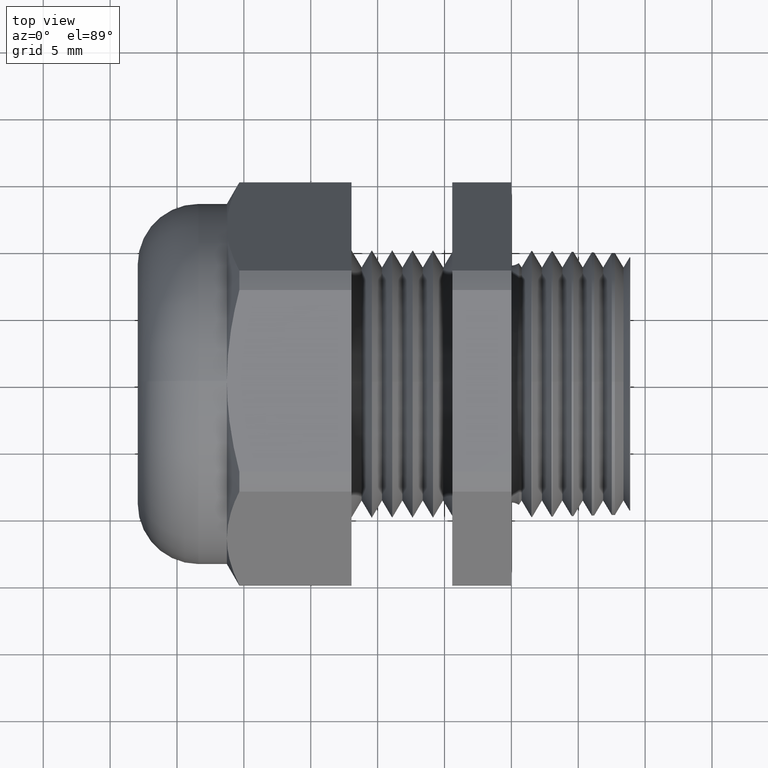
[diagram: clean part render]
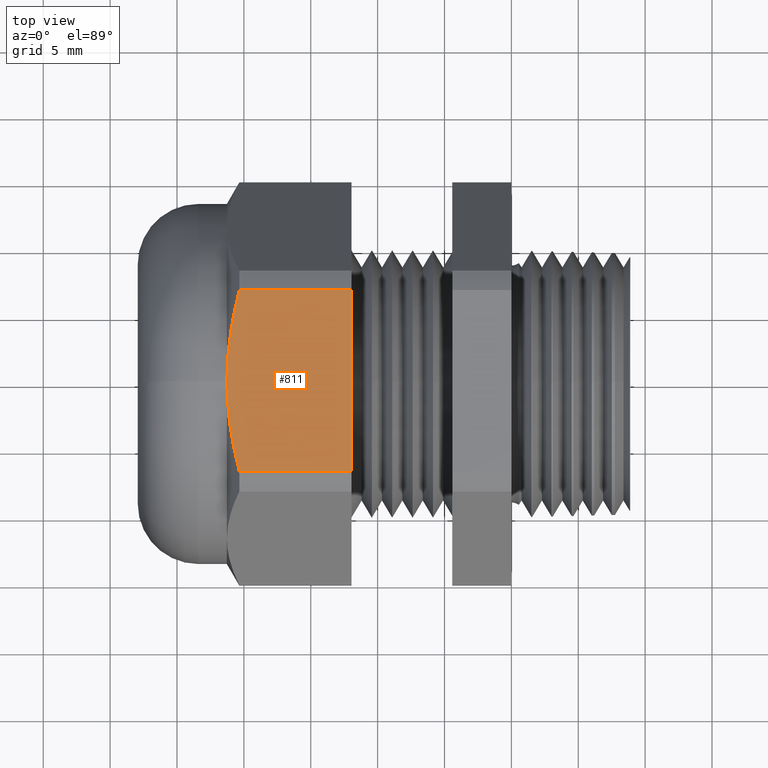
[diagram: same view with one face highlighted and labeled with its STEP entity id]
A machine part, top view. The second image highlights one B-rep face of the part: STEP entity #811.
In plain terms, the highlighted planar face has unit normal (0, 0, 1).
Its self-contained STEP definition (entity closure, byte-faithful):
#462 = VERTEX_POINT ( 'NONE', #1655 ) ;
#778 = VERTEX_POINT ( 'NONE', #2172 ) ;
#781 = EDGE_CURVE ( 'NONE', #778, #782, #2170, .T. ) ;
#782 = VERTEX_POINT ( 'NONE', #2229 ) ;
#811 = ADVANCED_FACE ( 'NONE', ( #2233 ), #2232, .T. ) ;
#812 = EDGE_LOOP ( 'NONE', ( #813, #814, #816, #818, #819 ) ) ;
#813 = ORIENTED_EDGE ( 'NONE', *, *, #781, .F. ) ;
#814 = ORIENTED_EDGE ( 'NONE', *, *, #815, .T. ) ;
#815 = EDGE_CURVE ( 'NONE', #778, #462, #2290, .T. ) ;
#816 = ORIENTED_EDGE ( 'NONE', *, *, #817, .T. ) ;
#817 = EDGE_CURVE ( 'NONE', #462, #845, #2280, .T. ) ;
#818 = ORIENTED_EDGE ( 'NONE', *, *, #825, .T. ) ;
#819 = ORIENTED_EDGE ( 'NONE', *, *, #820, .T. ) ;
#820 = EDGE_CURVE ( 'NONE', #851, #782, #2281, .T. ) ;
#825 = EDGE_CURVE ( 'NONE', #845, #851, #2313, .T. ) ;
#845 = VERTEX_POINT ( 'NONE', #2324 ) ;
#851 = VERTEX_POINT ( 'NONE', #2381 ) ;
#1655 = CARTESIAN_POINT ( 'NONE',  ( -0.8375000000000000200, 0.0000000000000000000, 0.5299999999999996900 ) ) ;
#2169 = CARTESIAN_POINT ( 'NONE',  ( -2.533243884661831900, 0.2673218285138723200, 0.5300000000000000300 ) ) ;
#2170 = LINE ( 'NONE', #2169, #2231 ) ;
#2172 = CARTESIAN_POINT ( 'NONE',  ( -0.8007805228795397100, 0.2673218285138723200, 0.5299999999999999200 ) ) ;
#2229 = CARTESIAN_POINT ( 'NONE',  ( -0.4708333333333330500, 0.2673218285138723200, 0.5300000000000000300 ) ) ;
#2230 = DIRECTION ( 'NONE',  ( 1.000000000000000000, 0.0000000000000000000, 0.0000000000000000000 ) ) ;
#2231 = VECTOR ( 'NONE', #2230, 39.37007874015748100 ) ;
#2232 = PLANE ( 'NONE',  #2294 ) ;
#2233 = FACE_OUTER_BOUND ( 'NONE', #812, .T. ) ;
#2268 = DIRECTION ( 'NONE',  ( 0.0000000000000000000, 1.000000000000000000, 0.0000000000000000000 ) ) ;
#2269 = VECTOR ( 'NONE', #2268, 39.37007874015748100 ) ;
#2270 = CARTESIAN_POINT ( 'NONE',  ( -0.4708333333333332700, 0.3950000000000000200, 0.5299999999999999200 ) ) ;
#2271 = CARTESIAN_POINT ( 'NONE',  ( -0.8007805228795397100, -0.2673218285138724300, 0.5299999999999999200 ) ) ;
#2272 = CARTESIAN_POINT ( 'NONE',  ( -0.8064647693670961000, -0.2454596720255573000, 0.5300000000000000300 ) ) ;
#2273 = CARTESIAN_POINT ( 'NONE',  ( -0.8116548691931353400, -0.2233522006217769400, 0.5300000000000001400 ) ) ;
#2274 = CARTESIAN_POINT ( 'NONE',  ( -0.8207557576897003300, -0.1789257074002588200, 0.5299999999999999200 ) ) ;
#2275 = CARTESIAN_POINT ( 'NONE',  ( -0.8246545637602134000, -0.1566720308095854400, 0.5299999999999998000 ) ) ;
#2276 = CARTESIAN_POINT ( 'NONE',  ( -0.8341465868220293600, -0.08977423242168815200, 0.5299999999999999200 ) ) ;
#2277 = CARTESIAN_POINT ( 'NONE',  ( -0.8375000000000000200, -0.04499114512754569900, 0.5300000000000001400 ) ) ;
#2278 = CARTESIAN_POINT ( 'NONE',  ( -0.8375000000000000200, 0.0000000000000000000, 0.5299999999999996900 ) ) ;
#2280 = B_SPLINE_CURVE_WITH_KNOTS ( 'NONE', 3,
 ( #2278, #2277, #2276, #2275, #2274, #2273, #2272, #2271 ),
 .UNSPECIFIED., .F., .F.,
 ( 4, 2, 2, 4 ),
 ( 0.01411129885236259500, 0.01752689908206323700, 0.01923469919691355600, 0.02094249931176387800 ),
 .UNSPECIFIED. ) ;
#2281 = LINE ( 'NONE', #2270, #2269 ) ;
#2282 = CARTESIAN_POINT ( 'NONE',  ( -0.8375000000000000200, 0.0000000000000000000, 0.5299999999999996900 ) ) ;
#2283 = CARTESIAN_POINT ( 'NONE',  ( -0.8374999999999996900, 0.02248601894749247000, 0.5300000000000000300 ) ) ;
#2284 = CARTESIAN_POINT ( 'NONE',  ( -0.8366704751326135000, 0.04502350460591592100, 0.5300000000000001400 ) ) ;
#2285 = CARTESIAN_POINT ( 'NONE',  ( -0.8333698439661925100, 0.09020032554817343500, 0.5299999999999999200 ) ) ;
#2286 = CARTESIAN_POINT ( 'NONE',  ( -0.8308887136721118100, 0.1128690294926516700, 0.5299999999999998000 ) ) ;
#2287 = CARTESIAN_POINT ( 'NONE',  ( -0.8213051833091241600, 0.1800017858002749500, 0.5299999999999999200 ) ) ;
#2288 = CARTESIAN_POINT ( 'NONE',  ( -0.8120576945526086800, 0.2239487460126228000, 0.5300000000000001400 ) ) ;
#2289 = CARTESIAN_POINT ( 'NONE',  ( -0.8007805228795397100, 0.2673218285138723200, 0.5299999999999999200 ) ) ;
#2290 = B_SPLINE_CURVE_WITH_KNOTS ( 'NONE', 3,
 ( #2289, #2288, #2287, #2286, #2285, #2284, #2283, #2282 ),
 .UNSPECIFIED., .F., .F.,
 ( 4, 2, 2, 4 ),
 ( 0.007282999526850545900, 0.01069714918960657100, 0.01240422402098458200, 0.01411129885236259500 ),
 .UNSPECIFIED. ) ;
#2291 = DIRECTION ( 'NONE',  ( 1.000000000000000000, 0.0000000000000000000, 0.0000000000000000000 ) ) ;
#2292 = DIRECTION ( 'NONE',  ( 0.0000000000000000000, 0.0000000000000000000, 1.000000000000000000 ) ) ;
#2293 = CARTESIAN_POINT ( 'NONE',  ( -2.533243884661831900, 0.2673218285138724300, 0.5299999999999999200 ) ) ;
#2294 = AXIS2_PLACEMENT_3D ( 'NONE', #2293, #2292, #2291 ) ;
#2310 = DIRECTION ( 'NONE',  ( 1.000000000000000000, 0.0000000000000000000, 0.0000000000000000000 ) ) ;
#2311 = VECTOR ( 'NONE', #2310, 39.37007874015748100 ) ;
#2312 = CARTESIAN_POINT ( 'NONE',  ( -2.533243884661831900, -0.2673218285138724300, 0.5299999999999999200 ) ) ;
#2313 = LINE ( 'NONE', #2312, #2311 ) ;
#2324 = CARTESIAN_POINT ( 'NONE',  ( -0.8007805228795397100, -0.2673218285138724300, 0.5299999999999999200 ) ) ;
#2381 = CARTESIAN_POINT ( 'NONE',  ( -0.4708333333333330500, -0.2673218285138724300, 0.5299999999999999200 ) ) ;